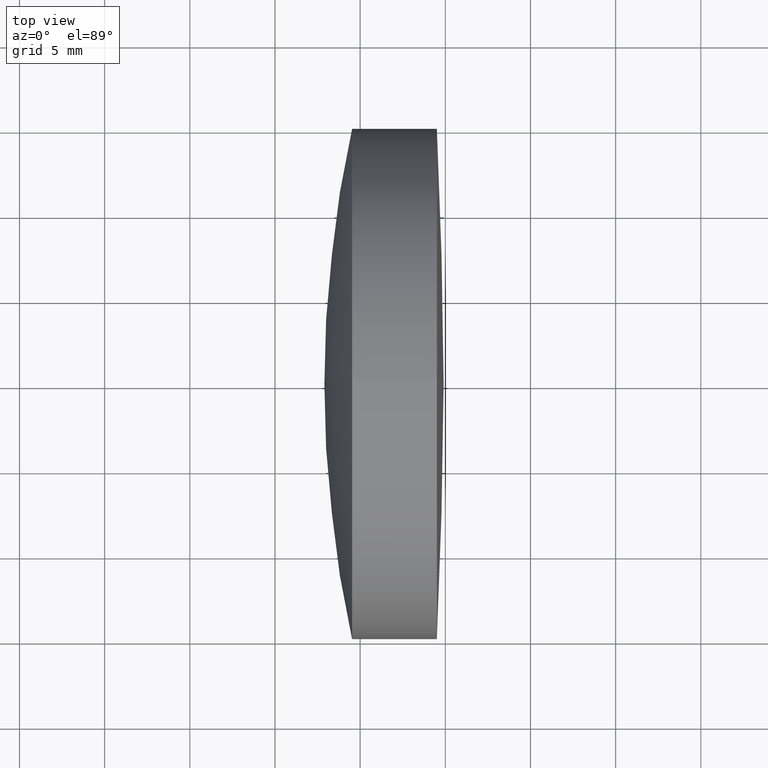
[diagram: clean part render]
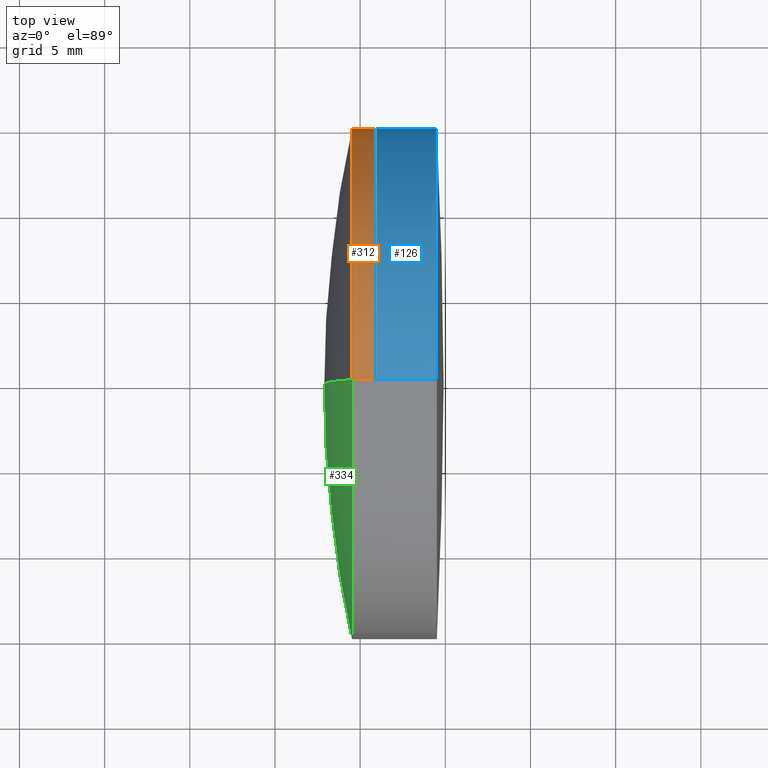
[diagram: same view with three faces highlighted in distinct colors, each labeled with its STEP entity id]
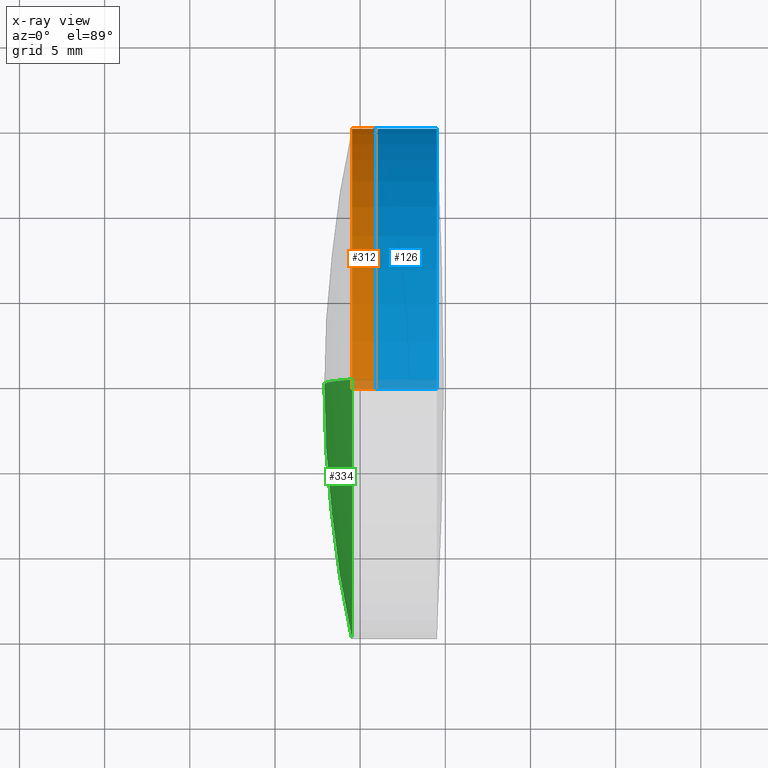
[diagram: x-ray of the same camera — body ghosted, the three highlighted faces saturated]
A machine part, top view with three faces highlighted in distinct colors.
The next image is the same camera in x-ray (body ghosted, the three faces saturated) — at least one of them is partly hidden behind the body in this view.
Their STEP definitions:

[orange] entity #312 — the highlighted cylindrical surface (partial cylindrical patch) has radius 15 mm, axis along (-1, -0, -0).
#1 = ORIENTED_EDGE ( 'NONE', *, *, #189, .F. ) ;
#17 = CARTESIAN_POINT ( 'NONE',  ( 234.5265290828657800, 0.0000000000000000000, 14.99999999999989300 ) ) ;
#31 = LINE ( 'NONE', #164, #345 ) ;
#34 = DIRECTION ( 'NONE',  ( -1.000000000000000000, -0.0000000000000000000, -0.0000000000000000000 ) ) ;
#46 = VERTEX_POINT ( 'NONE', #17 ) ;
#56 = DIRECTION ( 'NONE',  ( 0.0000000000000000000, 0.0000000000000000000, 1.000000000000000000 ) ) ;
#62 = CARTESIAN_POINT ( 'NONE',  ( 234.5265290828657800, 1.836970198721017000E-015, -15.00000000000011400 ) ) ;
#67 = ORIENTED_EDGE ( 'NONE', *, *, #123, .T. ) ;
#120 = DIRECTION ( 'NONE',  ( -1.000000000000000000, -0.0000000000000000000, -0.0000000000000000000 ) ) ;
#123 = EDGE_CURVE ( 'NONE', #289, #328, #207, .T. ) ;
#164 = CARTESIAN_POINT ( 'NONE',  ( 124.5233095260452400, 0.0000000000000000000, 14.99999999999990200 ) ) ;
#183 = CARTESIAN_POINT ( 'NONE',  ( 235.8914090782225800, 0.0000000000000000000, 0.0000000000000000000 ) ) ;
#186 = DIRECTION ( 'NONE',  ( 0.0000000000000000000, 0.0000000000000000000, 1.000000000000000000 ) ) ;
#189 = EDGE_CURVE ( 'NONE', #46, #328, #286, .T. ) ;
#198 = FACE_OUTER_BOUND ( 'NONE', #206, .T. ) ;
#206 = EDGE_LOOP ( 'NONE', ( #252, #67, #1, #282 ) ) ;
#207 = LINE ( 'NONE', #246, #244 ) ;
#208 = DIRECTION ( 'NONE',  ( -1.000000000000000000, -0.0000000000000000000, -0.0000000000000000000 ) ) ;
#214 = CARTESIAN_POINT ( 'NONE',  ( 234.5265290828657800, 0.0000000000000000000, 0.0000000000000000000 ) ) ;
#217 = DIRECTION ( 'NONE',  ( -1.000000000000000000, -0.0000000000000000000, -0.0000000000000000000 ) ) ;
#224 = EDGE_CURVE ( 'NONE', #263, #46, #31, .T. ) ;
#230 = DIRECTION ( 'NONE',  ( 0.0000000000000000000, 0.0000000000000000000, 1.000000000000000000 ) ) ;
#244 = VECTOR ( 'NONE', #217, 1000.000000000000000 ) ;
#246 = CARTESIAN_POINT ( 'NONE',  ( 124.5233095260452400, 1.836970198721017800E-015, -14.99999999999990200 ) ) ;
#250 = CARTESIAN_POINT ( 'NONE',  ( 124.5233095260452400, 0.0000000000000000000, 0.0000000000000000000 ) ) ;
#252 = ORIENTED_EDGE ( 'NONE', *, *, #313, .T. ) ;
#263 = VERTEX_POINT ( 'NONE', #346 ) ;
#272 = CARTESIAN_POINT ( 'NONE',  ( 235.8914090782225800, 1.836970198721017400E-015, -14.99999999999989700 ) ) ;
#278 = AXIS2_PLACEMENT_3D ( 'NONE', #183, #208, #56 ) ;
#282 = ORIENTED_EDGE ( 'NONE', *, *, #224, .F. ) ;
#286 = CIRCLE ( 'NONE', #335, 14.99999999999990800 ) ;
#289 = VERTEX_POINT ( 'NONE', #272 ) ;
#294 = AXIS2_PLACEMENT_3D ( 'NONE', #250, #303, #230 ) ;
#300 = CIRCLE ( 'NONE', #278, 14.99999999999989700 ) ;
#303 = DIRECTION ( 'NONE',  ( -1.000000000000000000, -0.0000000000000000000, -0.0000000000000000000 ) ) ;
#312 = ADVANCED_FACE ( 'NONE', ( #198 ), #337, .T. ) ;
#313 = EDGE_CURVE ( 'NONE', #263, #289, #300, .T. ) ;
#328 = VERTEX_POINT ( 'NONE', #62 ) ;
#335 = AXIS2_PLACEMENT_3D ( 'NONE', #214, #34, #186 ) ;
#337 = CYLINDRICAL_SURFACE ( 'NONE', #294, 14.99999999999990200 ) ;
#345 = VECTOR ( 'NONE', #120, 1000.000000000000000 ) ;
#346 = CARTESIAN_POINT ( 'NONE',  ( 235.8914090782225800, 0.0000000000000000000, 14.99999999999989700 ) ) ;

[blue] entity #126 — the highlighted cylindrical surface (partial cylindrical patch) has radius 15 mm, axis along (-1, -0, -0).
#2 = LINE ( 'NONE', #83, #293 ) ;
#35 = DIRECTION ( 'NONE',  ( -1.000000000000000000, -0.0000000000000000000, -0.0000000000000000000 ) ) ;
#39 = FACE_OUTER_BOUND ( 'NONE', #331, .T. ) ;
#44 = CARTESIAN_POINT ( 'NONE',  ( 239.5046556379369900, 1.836970198721015000E-015, -14.99999999999987400 ) ) ;
#48 = EDGE_CURVE ( 'NONE', #285, #339, #148, .T. ) ;
#49 = CARTESIAN_POINT ( 'NONE',  ( 239.5046556379369900, 0.0000000000000000000, 14.99999999999987400 ) ) ;
#58 = AXIS2_PLACEMENT_3D ( 'NONE', #299, #119, #268 ) ;
#59 = VERTEX_POINT ( 'NONE', #173 ) ;
#77 = CARTESIAN_POINT ( 'NONE',  ( 235.8914090782225800, 0.0000000000000000000, 14.99999999999989200 ) ) ;
#83 = CARTESIAN_POINT ( 'NONE',  ( -0.5519199926577972300, 0.0000000000000000000, 14.99999999999988100 ) ) ;
#91 = DIRECTION ( 'NONE',  ( -1.000000000000000000, -0.0000000000000000000, -0.0000000000000000000 ) ) ;
#94 = ORIENTED_EDGE ( 'NONE', *, *, #305, .F. ) ;
#95 = DIRECTION ( 'NONE',  ( 0.0000000000000000000, 0.0000000000000000000, 1.000000000000000000 ) ) ;
#101 = ORIENTED_EDGE ( 'NONE', *, *, #130, .T. ) ;
#119 = DIRECTION ( 'NONE',  ( -1.000000000000000000, -0.0000000000000000000, -0.0000000000000000000 ) ) ;
#122 = CARTESIAN_POINT ( 'NONE',  ( 235.8914090782225800, 0.0000000000000000000, 0.0000000000000000000 ) ) ;
#126 = ADVANCED_FACE ( 'NONE', ( #39 ), #213, .T. ) ;
#130 = EDGE_CURVE ( 'NONE', #339, #59, #309, .T. ) ;
#140 = DIRECTION ( 'NONE',  ( 0.0000000000000000000, 0.0000000000000000000, 1.000000000000000000 ) ) ;
#148 = CIRCLE ( 'NONE', #58, 14.99999999999987400 ) ;
#173 = CARTESIAN_POINT ( 'NONE',  ( 235.8914090782225800, 1.836970198721016600E-015, -14.99999999999989200 ) ) ;
#194 = CARTESIAN_POINT ( 'NONE',  ( -0.5519199926577972300, 0.0000000000000000000, 0.0000000000000000000 ) ) ;
#209 = ORIENTED_EDGE ( 'NONE', *, *, #234, .F. ) ;
#213 = CYLINDRICAL_SURFACE ( 'NONE', #260, 14.99999999999988100 ) ;
#234 = EDGE_CURVE ( 'NONE', #285, #257, #2, .T. ) ;
#257 = VERTEX_POINT ( 'NONE', #77 ) ;
#260 = AXIS2_PLACEMENT_3D ( 'NONE', #194, #91, #140 ) ;
#268 = DIRECTION ( 'NONE',  ( 0.0000000000000000000, 0.0000000000000000000, 1.000000000000000000 ) ) ;
#269 = DIRECTION ( 'NONE',  ( -1.000000000000000000, -0.0000000000000000000, -0.0000000000000000000 ) ) ;
#285 = VERTEX_POINT ( 'NONE', #49 ) ;
#291 = DIRECTION ( 'NONE',  ( -1.000000000000000000, -0.0000000000000000000, -0.0000000000000000000 ) ) ;
#293 = VECTOR ( 'NONE', #291, 1000.000000000000000 ) ;
#299 = CARTESIAN_POINT ( 'NONE',  ( 239.5046556379369900, 0.0000000000000000000, 0.0000000000000000000 ) ) ;
#302 = ORIENTED_EDGE ( 'NONE', *, *, #48, .T. ) ;
#305 = EDGE_CURVE ( 'NONE', #257, #59, #321, .T. ) ;
#307 = AXIS2_PLACEMENT_3D ( 'NONE', #122, #269, #95 ) ;
#309 = LINE ( 'NONE', #327, #341 ) ;
#321 = CIRCLE ( 'NONE', #307, 14.99999999999988600 ) ;
#327 = CARTESIAN_POINT ( 'NONE',  ( -0.5519199926577972300, 1.836970198721015400E-015, -14.99999999999988100 ) ) ;
#331 = EDGE_LOOP ( 'NONE', ( #302, #101, #94, #209 ) ) ;
#339 = VERTEX_POINT ( 'NONE', #44 ) ;
#341 = VECTOR ( 'NONE', #35, 1000.000000000000000 ) ;

[green] entity #334 — the highlighted spherical surface has radius 70 mm.
#4 = DIRECTION ( 'NONE',  ( 0.0000000000000000000, 1.000000000000000000, 0.0000000000000000000 ) ) ;
#17 = CARTESIAN_POINT ( 'NONE',  ( 234.5265290828657800, 0.0000000000000000000, 14.99999999999989300 ) ) ;
#27 = CARTESIAN_POINT ( 'NONE',  ( 302.9005007387524400, 0.0000000000000000000, -2.198847408964090500E-013 ) ) ;
#42 = CARTESIAN_POINT ( 'NONE',  ( 302.9005007387524400, 0.0000000000000000000, -2.198847408964090500E-013 ) ) ;
#46 = VERTEX_POINT ( 'NONE', #17 ) ;
#61 = DIRECTION ( 'NONE',  ( -0.0000000000000000000, 1.000000000000000000, 1.224646799147353200E-016 ) ) ;
#62 = CARTESIAN_POINT ( 'NONE',  ( 234.5265290828657800, 1.836970198721017000E-015, -15.00000000000011400 ) ) ;
#74 = EDGE_CURVE ( 'NONE', #328, #46, #336, .T. ) ;
#86 = DIRECTION ( 'NONE',  ( 0.0000000000000000000, -1.224646799147353200E-016, 1.000000000000000000 ) ) ;
#88 = DIRECTION ( 'NONE',  ( 0.0000000000000000000, 0.0000000000000000000, 1.000000000000000000 ) ) ;
#116 = AXIS2_PLACEMENT_3D ( 'NONE', #193, #4, #228 ) ;
#117 = DIRECTION ( 'NONE',  ( -1.000000000000000000, -0.0000000000000000000, -0.0000000000000000000 ) ) ;
#133 = EDGE_CURVE ( 'NONE', #328, #237, #203, .T. ) ;
#158 = ORIENTED_EDGE ( 'NONE', *, *, #74, .T. ) ;
#175 = CARTESIAN_POINT ( 'NONE',  ( 232.9005007387524700, 0.0000000000000000000, -2.155984770993932900E-013 ) ) ;
#180 = AXIS2_PLACEMENT_3D ( 'NONE', #27, #236, #258 ) ;
#193 = CARTESIAN_POINT ( 'NONE',  ( 302.9005007387524400, 0.0000000000000000000, -2.198847408964090500E-013 ) ) ;
#199 = AXIS2_PLACEMENT_3D ( 'NONE', #297, #117, #88 ) ;
#203 = CIRCLE ( 'NONE', #204, 69.99999999999998600 ) ;
#204 = AXIS2_PLACEMENT_3D ( 'NONE', #42, #61, #86 ) ;
#218 = CIRCLE ( 'NONE', #180, 69.99999999999998600 ) ;
#228 = DIRECTION ( 'NONE',  ( 0.0000000000000000000, 0.0000000000000000000, 1.000000000000000000 ) ) ;
#236 = DIRECTION ( 'NONE',  ( 0.0000000000000000000, -1.000000000000000000, 0.0000000000000000000 ) ) ;
#237 = VERTEX_POINT ( 'NONE', #175 ) ;
#247 = ORIENTED_EDGE ( 'NONE', *, *, #133, .F. ) ;
#254 = EDGE_CURVE ( 'NONE', #46, #237, #218, .T. ) ;
#255 = EDGE_LOOP ( 'NONE', ( #247, #158, #318 ) ) ;
#258 = DIRECTION ( 'NONE',  ( 0.0000000000000000000, 0.0000000000000000000, -1.000000000000000000 ) ) ;
#273 = SPHERICAL_SURFACE ( 'NONE', #116, 69.99999999999998600 ) ;
#297 = CARTESIAN_POINT ( 'NONE',  ( 234.5265290828657800, 0.0000000000000000000, 0.0000000000000000000 ) ) ;
#318 = ORIENTED_EDGE ( 'NONE', *, *, #254, .T. ) ;
#326 = FACE_OUTER_BOUND ( 'NONE', #255, .T. ) ;
#328 = VERTEX_POINT ( 'NONE', #62 ) ;
#334 = ADVANCED_FACE ( 'NONE', ( #326 ), #273, .T. ) ;
#336 = CIRCLE ( 'NONE', #199, 14.99999999999990800 ) ;